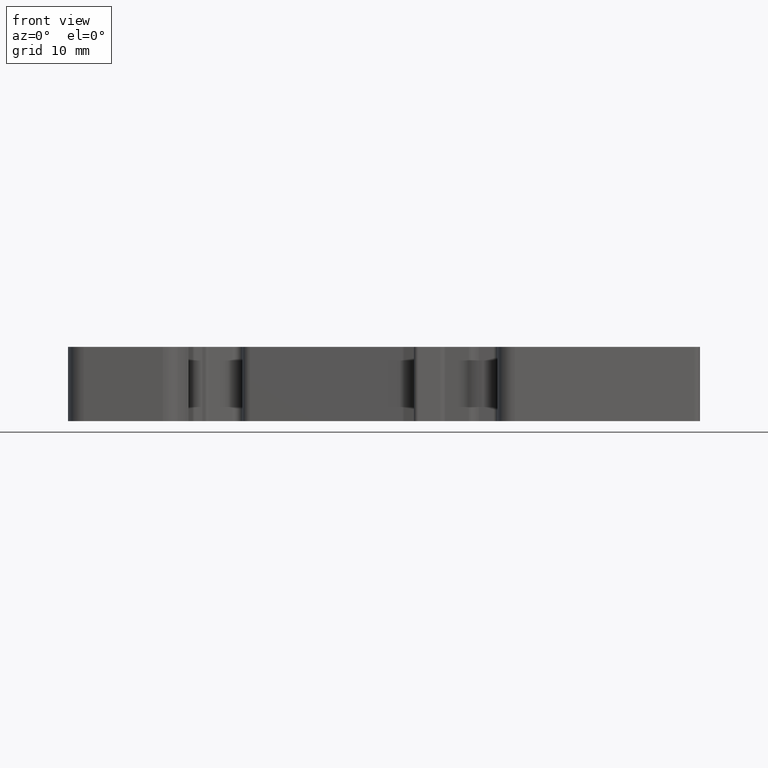
[diagram: clean part render]
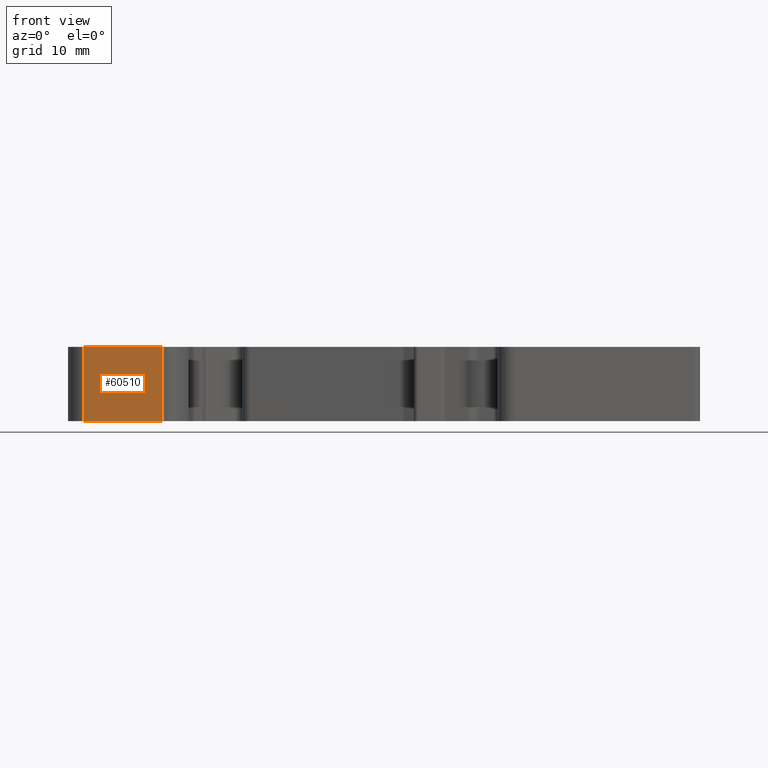
[diagram: same view with one face highlighted and labeled with its STEP entity id]
A machine part, front view. The second image highlights one B-rep face of the part: STEP entity #60510.
In plain terms, the highlighted planar face has unit normal (-0, -1, -0).
Its self-contained STEP definition (entity closure, byte-faithful):
#8140=CARTESIAN_POINT('',(0.525215964336339,-7.1999995,10.1));
#8150=VERTEX_POINT('',#8140);
#8180=CARTESIAN_POINT('',(7.823389,-7.1999995,10.1));
#8190=DIRECTION('',(-1.,0.,0.));
#8200=VECTOR('',#8190,1.);
#8210=LINE('',#8180,#8200);
#8220=CARTESIAN_POINT('',(11.319603903941,-7.1999995,10.1));
#8230=VERTEX_POINT('',#8220);
#8240=EDGE_CURVE('',#8230,#8150,#8210,.T.);
#17980=CARTESIAN_POINT('',(11.319603903941,-7.1999995,20.25));
#17990=VERTEX_POINT('',#17980);
#18020=CARTESIAN_POINT('',(7.823389,-7.1999995,20.25));
#18030=DIRECTION('',(-1.,0.,0.));
#18040=VECTOR('',#18030,1.);
#18050=LINE('',#18020,#18040);
#18060=CARTESIAN_POINT('',(0.525215964336339,-7.1999995,20.25));
#18070=VERTEX_POINT('',#18060);
#18080=EDGE_CURVE('',#17990,#18070,#18050,.T.);
#60180=CARTESIAN_POINT('',(0.525215964336339,-7.1999995,10.1));
#60190=DIRECTION('',(0.,0.,1.));
#60200=VECTOR('',#60190,1.);
#60210=LINE('',#60180,#60200);
#60220=EDGE_CURVE('',#8150,#18070,#60210,.T.);
#60350=CARTESIAN_POINT('',(11.319603903941,-7.1999995,10.1));
#60360=DIRECTION('',(-0.,-1.,-0.));
#60370=DIRECTION('',(-1.,0.,0.));
#60380=AXIS2_PLACEMENT_3D('',#60350,#60360,#60370);
#60390=PLANE('',#60380);
#60400=ORIENTED_EDGE('',*,*,#60220,.F.);
#60410=ORIENTED_EDGE('',*,*,#18080,.T.);
#60420=CARTESIAN_POINT('',(11.319603903941,-7.1999995,10.1));
#60430=DIRECTION('',(0.,0.,1.));
#60440=VECTOR('',#60430,1.);
#60450=LINE('',#60420,#60440);
#60460=EDGE_CURVE('',#8230,#17990,#60450,.T.);
#60470=ORIENTED_EDGE('',*,*,#60460,.T.);
#60480=ORIENTED_EDGE('',*,*,#8240,.F.);
#60490=EDGE_LOOP('',(#60480,#60470,#60410,#60400));
#60500=FACE_OUTER_BOUND('',#60490,.T.);
#60510=ADVANCED_FACE('',(#60500),#60390,.T.);